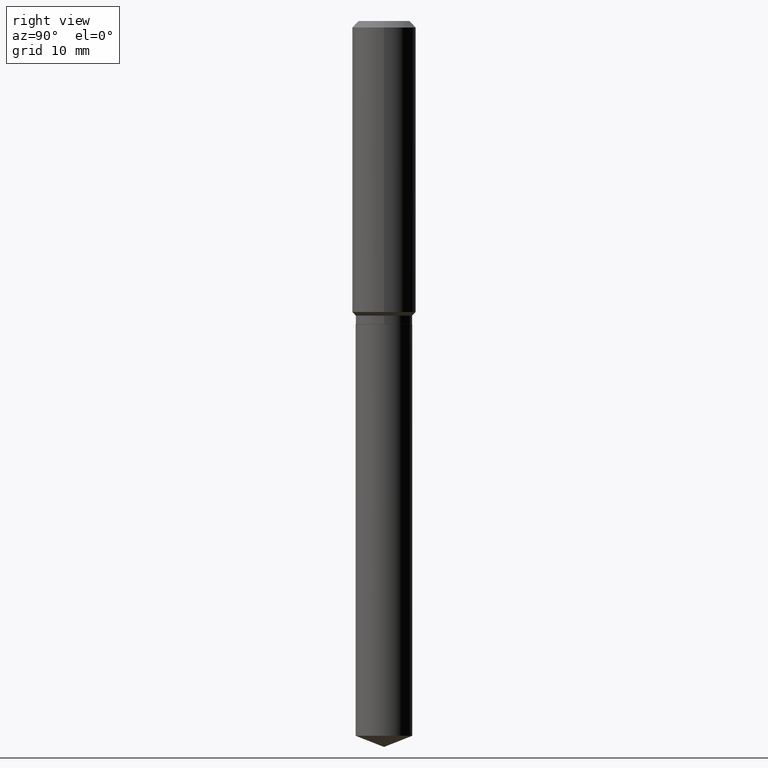
[diagram: clean part render]
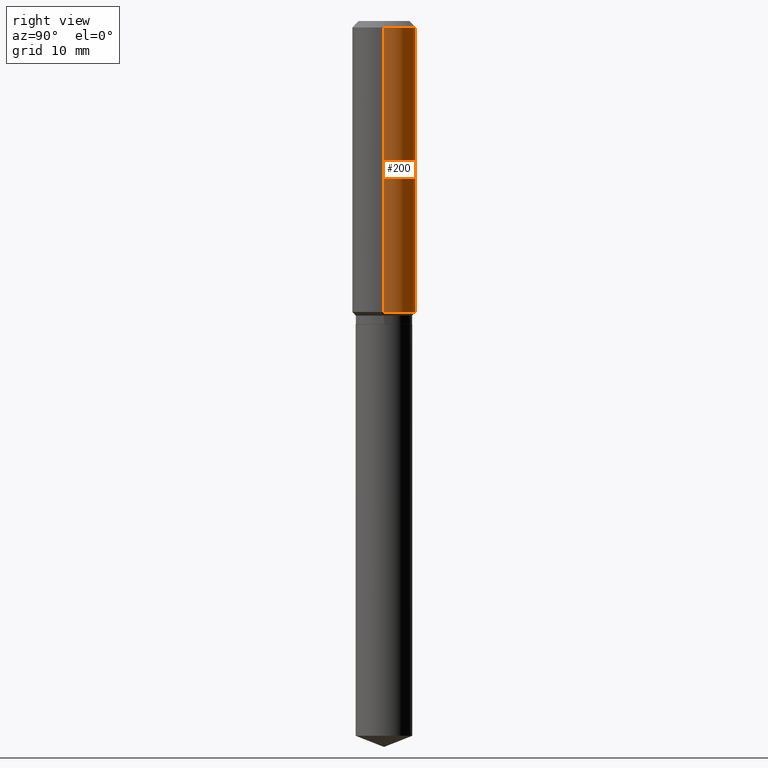
[diagram: same view with one face highlighted and labeled with its STEP entity id]
A machine part, right view. The second image highlights one B-rep face of the part: STEP entity #200.
In plain terms, the highlighted cylindrical surface (edge-blend (fillet) strip) has radius 4.0005 mm, axis along (-0, 0, 1).
Its self-contained STEP definition (entity closure, byte-faithful):
#25 = DIRECTION ( 'NONE',  ( -2.445468806185136877E-29, 3.491481338843145188E-15, 1.000000000000000000 ) ) ;
#32 = AXIS2_PLACEMENT_3D ( 'NONE', #341, #409, #480 ) ;
#36 = FACE_OUTER_BOUND ( 'NONE', #168, .T. ) ;
#54 = AXIS2_PLACEMENT_3D ( 'NONE', #372, #254, #488 ) ;
#115 = LINE ( 'NONE', #306, #452 ) ;
#138 = EDGE_CURVE ( 'NONE', #245, #466, #270, .T. ) ;
#142 = CARTESIAN_POINT ( 'NONE',  ( 0.1575000000000001676, -6.114805842782939970E-15, -1.436350000000000016 ) ) ;
#164 = ORIENTED_EDGE ( 'NONE', *, *, #479, .F. ) ;
#167 = EDGE_CURVE ( 'NONE', #442, #202, #236, .T. ) ;
#168 = EDGE_LOOP ( 'NONE', ( #364, #316, #203, #164 ) ) ;
#171 = LINE ( 'NONE', #283, #205 ) ;
#186 = AXIS2_PLACEMENT_3D ( 'NONE', #445, #448, #303 ) ;
#192 = CARTESIAN_POINT ( 'NONE',  ( -0.1575000000000000011, -1.443380632788297581E-15, -0.03150000000000019451 ) ) ;
#200 = ADVANCED_FACE ( 'NONE', ( #36 ), #382, .T. ) ;
#202 = VERTEX_POINT ( 'NONE', #290 ) ;
#203 = ORIENTED_EDGE ( 'NONE', *, *, #138, .F. ) ;
#205 = VECTOR ( 'NONE', #25, 39.37007874015748143 ) ;
#236 = CIRCLE ( 'NONE', #186, 0.1575000000000001676 ) ;
#245 = VERTEX_POINT ( 'NONE', #378 ) ;
#254 = DIRECTION ( 'NONE',  ( -2.445468806185136597E-29, 3.491481338843145583E-15, 1.000000000000000000 ) ) ;
#270 = CIRCLE ( 'NONE', #54, 0.1575000000000000011 ) ;
#283 = CARTESIAN_POINT ( 'NONE',  ( -0.1575000000000000844, 1.119104808822158392E-15, -7.747322767151481189E-30 ) ) ;
#290 = CARTESIAN_POINT ( 'NONE',  ( -0.1575000000000001676, -3.895884412225194097E-15, -1.436350000000000016 ) ) ;
#303 = DIRECTION ( 'NONE',  ( 1.000000000000000000, -6.982962677686267499E-15, 0.000000000000000000 ) ) ;
#306 = CARTESIAN_POINT ( 'NONE',  ( 0.1575000000000000844, -1.099816621735587677E-15, 7.679978421878603638E-30 ) ) ;
#316 = ORIENTED_EDGE ( 'NONE', *, *, #360, .T. ) ;
#341 = CARTESIAN_POINT ( 'NONE',  ( 0.000000000000000000, 0.000000000000000000, 0.000000000000000000 ) ) ;
#360 = EDGE_CURVE ( 'NONE', #202, #466, #171, .T. ) ;
#364 = ORIENTED_EDGE ( 'NONE', *, *, #167, .T. ) ;
#372 = CARTESIAN_POINT ( 'NONE',  ( 7.703226739483228723E-31, -1.099816621735597661E-16, -0.03150000000000019451 ) ) ;
#378 = CARTESIAN_POINT ( 'NONE',  ( 0.1575000000000000011, -1.209798283909146741E-15, -0.03150000000000019451 ) ) ;
#382 = CYLINDRICAL_SURFACE ( 'NONE', #32, 0.1575000000000000844 ) ;
#409 = DIRECTION ( 'NONE',  ( -2.445468806185136597E-29, 3.491481338843145583E-15, 1.000000000000000000 ) ) ;
#442 = VERTEX_POINT ( 'NONE', #142 ) ;
#445 = CARTESIAN_POINT ( 'NONE',  ( 3.512549119764021199E-29, -5.014989221047352489E-15, -1.436350000000000016 ) ) ;
#448 = DIRECTION ( 'NONE',  ( -2.445468806185136597E-29, 3.491481338843145583E-15, 1.000000000000000000 ) ) ;
#452 = VECTOR ( 'NONE', #489, 39.37007874015748143 ) ;
#466 = VERTEX_POINT ( 'NONE', #192 ) ;
#479 = EDGE_CURVE ( 'NONE', #442, #245, #115, .T. ) ;
#480 = DIRECTION ( 'NONE',  ( 1.000000000000000000, -6.982962677686267499E-15, 4.876176775795936353E-29 ) ) ;
#488 = DIRECTION ( 'NONE',  ( 1.000000000000000000, -6.982962677686265922E-15, 0.000000000000000000 ) ) ;
#489 = DIRECTION ( 'NONE',  ( -2.445468806185136877E-29, 3.491481338843145188E-15, 1.000000000000000000 ) ) ;